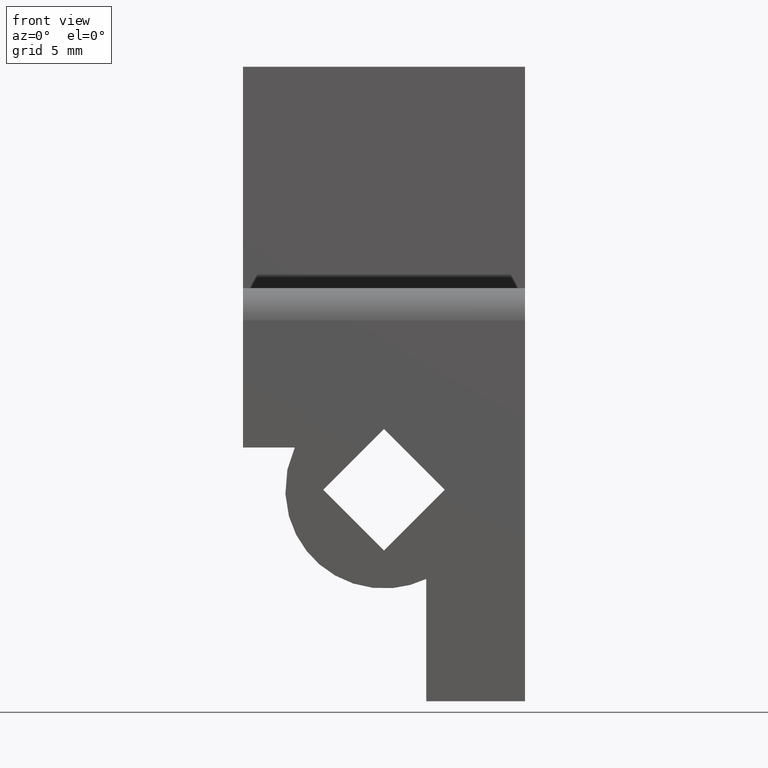
[diagram: clean part render]
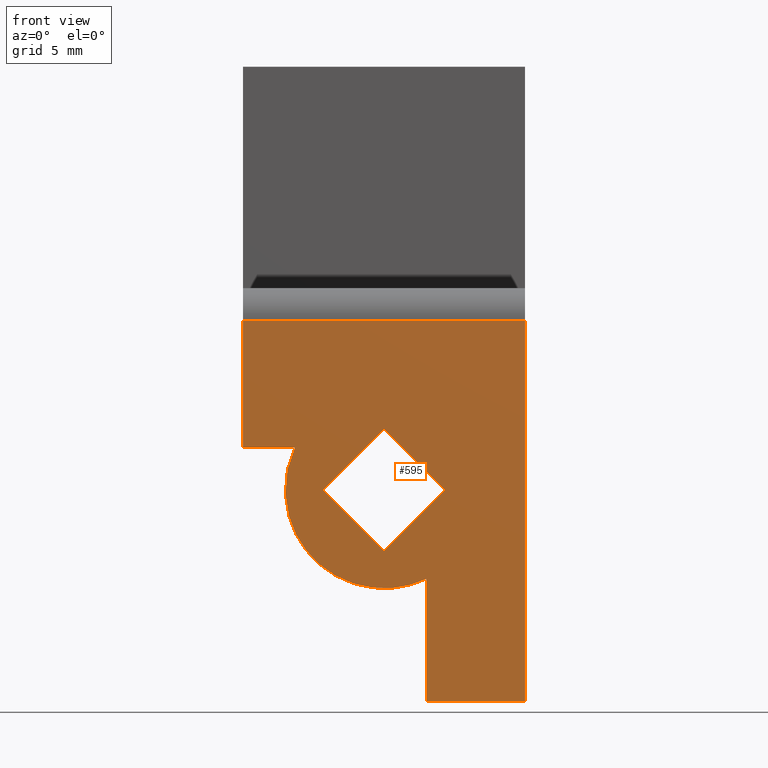
[diagram: same view with one face highlighted and labeled with its STEP entity id]
A machine part, front view. The second image highlights one B-rep face of the part: STEP entity #595.
In plain terms, the highlighted face is a freeform B-spline surface patch.
Its self-contained STEP definition (entity closure, byte-faithful):
#51=CARTESIAN_POINT('',(-4.313324000000286,0.0,0.000007999999885));
#52=VERTEX_POINT('',#51);
#58=CARTESIAN_POINT('',(0.0,0.0,-4.313347000000000));
#59=VERTEX_POINT('',#58);
#60=CARTESIAN_POINT('',(-4.313324000000286,0.0,0.000007999999885));
#61=CARTESIAN_POINT('',(0.0,0.0,-4.313347000000000));
#62=QUASI_UNIFORM_CURVE('',1,(#60,#61),.UNSPECIFIED.,.F.,.U.);
#63=EDGE_CURVE('',#52,#59,#62,.T.);
#87=CARTESIAN_POINT('',(0.0,0.0,4.313338999999901));
#88=VERTEX_POINT('',#87);
#94=CARTESIAN_POINT('',(0.0,0.0,4.313338999999901));
#95=CARTESIAN_POINT('',(-4.313324000000286,0.0,0.000007999999885));
#96=QUASI_UNIFORM_CURVE('',1,(#94,#95),.UNSPECIFIED.,.F.,.U.);
#97=EDGE_CURVE('',#88,#52,#96,.T.);
#115=CARTESIAN_POINT('',(4.313353999999890,0.0,-0.000007999999994));
#116=VERTEX_POINT('',#115);
#122=CARTESIAN_POINT('',(4.313353999999890,0.0,-0.000007999999994));
#123=CARTESIAN_POINT('',(0.0,0.0,4.313338999999901));
#124=QUASI_UNIFORM_CURVE('',1,(#122,#123),.UNSPECIFIED.,.F.,.U.);
#125=EDGE_CURVE('',#116,#88,#124,.T.);
#142=CARTESIAN_POINT('',(0.0,0.0,-4.313347000000000));
#143=CARTESIAN_POINT('',(4.313353999999890,0.0,-0.000007999999994));
#144=QUASI_UNIFORM_CURVE('',1,(#142,#143),.UNSPECIFIED.,.F.,.U.);
#145=EDGE_CURVE('',#59,#116,#144,.T.);
#163=CARTESIAN_POINT('',(-6.324555000000090,0.0,3.0));
#164=VERTEX_POINT('',#163);
#170=CARTESIAN_POINT('',(-10.000000000000121,0.0,3.0));
#171=VERTEX_POINT('',#170);
#172=CARTESIAN_POINT('',(-6.324555000000090,0.0,3.0));
#173=CARTESIAN_POINT('',(-10.000000000000121,0.0,3.0));
#174=QUASI_UNIFORM_CURVE('',1,(#172,#173),.UNSPECIFIED.,.F.,.U.);
#175=EDGE_CURVE('',#164,#171,#174,.T.);
#199=CARTESIAN_POINT('',(3.0,0.0,-15.0));
#200=VERTEX_POINT('',#199);
#206=CARTESIAN_POINT('',(3.0,0.0,-6.324562000000100));
#207=VERTEX_POINT('',#206);
#208=CARTESIAN_POINT('',(3.0,0.0,-15.0));
#209=CARTESIAN_POINT('',(3.0,0.0,-6.324562000000100));
#210=QUASI_UNIFORM_CURVE('',1,(#208,#209),.UNSPECIFIED.,.F.,.U.);
#211=EDGE_CURVE('',#200,#207,#210,.T.);
#262=CARTESIAN_POINT('',(-6.324555000000090,0.0,3.0));
#263=CARTESIAN_POINT('',(-8.439917307903180,0.0,-1.459576373039803));
#264=CARTESIAN_POINT('',(-4.949747104974504,0.0,-4.949749196060422));
#265=CARTESIAN_POINT('',(-1.459576902045831,0.0,-8.439922019081038));
#266=CARTESIAN_POINT('',(3.0,0.0,-6.324562000000100));
#274=(BOUNDED_CURVE()B_SPLINE_CURVE(2,(#262,#263,#264,#265,#266),.UNSPECIFIED.,.F.,.U.)B_SPLINE_CURVE_WITH_KNOTS((3,2,3),(0.0,0.500000000000000,1.0),.UNSPECIFIED.)CURVE()GEOMETRIC_REPRESENTATION_ITEM()RATIONAL_B_SPLINE_CURVE((1.0,0.817260969642256,1.0,0.817260969642256,1.0))REPRESENTATION_ITEM(''));
#275=EDGE_CURVE('',#164,#207,#274,.T.);
#294=CARTESIAN_POINT('',(-10.000000000000121,0.000003000000015,11.999999799287140));
#295=VERTEX_POINT('',#294);
#296=CARTESIAN_POINT('',(-10.000000000000121,0.000003000000015,11.999999799287140));
#297=CARTESIAN_POINT('',(-10.000000000000121,0.0,3.0));
#298=QUASI_UNIFORM_CURVE('',1,(#296,#297),.UNSPECIFIED.,.F.,.U.);
#299=EDGE_CURVE('',#295,#171,#298,.T.);
#399=CARTESIAN_POINT('',(10.0,0.000003000000015,11.999999799287140));
#400=VERTEX_POINT('',#399);
#416=CARTESIAN_POINT('',(10.0,0.0,-15.0));
#417=VERTEX_POINT('',#416);
#418=CARTESIAN_POINT('',(10.0,0.000003000000015,11.999999799287140));
#419=CARTESIAN_POINT('',(10.0,0.0,-15.0));
#420=QUASI_UNIFORM_CURVE('',1,(#418,#419),.UNSPECIFIED.,.F.,.U.);
#421=EDGE_CURVE('',#400,#417,#420,.T.);
#560=CARTESIAN_POINT('',(10.0,0.0,-15.0));
#561=CARTESIAN_POINT('',(3.0,0.0,-15.0));
#562=QUASI_UNIFORM_CURVE('',1,(#560,#561),.UNSPECIFIED.,.F.,.U.);
#563=EDGE_CURVE('',#417,#200,#562,.T.);
#571=CARTESIAN_POINT('',(-10.998999961236249,0.0,-16.348649937643160));
#572=CARTESIAN_POINT('',(-10.998999961236249,0.0,13.348650461126720));
#573=CARTESIAN_POINT('',(10.999000497677930,0.0,-16.348649937643160));
#574=CARTESIAN_POINT('',(10.999000497677930,0.0,13.348650461126720));
#575=B_SPLINE_SURFACE_WITH_KNOTS('',1,1,((#571,#573),(#572,#574)),.UNSPECIFIED.,.F.,.F.,.U.,(2,2),(2,2),(0.0,29.697300398769890),(0.0,21.998000458914181),.UNSPECIFIED.);
#576=ORIENTED_EDGE('',*,*,#275,.T.);
#577=ORIENTED_EDGE('',*,*,#211,.F.);
#578=ORIENTED_EDGE('',*,*,#563,.F.);
#579=ORIENTED_EDGE('',*,*,#421,.F.);
#580=CARTESIAN_POINT('',(10.0,0.000003000000015,11.999999799287140));
#581=CARTESIAN_POINT('',(-10.000000000000121,0.000003000000015,11.999999799287140));
#582=QUASI_UNIFORM_CURVE('',1,(#580,#581),.UNSPECIFIED.,.F.,.U.);
#583=EDGE_CURVE('',#400,#295,#582,.T.);
#584=ORIENTED_EDGE('',*,*,#583,.T.);
#585=ORIENTED_EDGE('',*,*,#299,.T.);
#586=ORIENTED_EDGE('',*,*,#175,.F.);
#587=EDGE_LOOP('',(#576,#577,#578,#579,#584,#585,#586));
#588=FACE_OUTER_BOUND('',#587,.T.);
#589=ORIENTED_EDGE('',*,*,#125,.F.);
#590=ORIENTED_EDGE('',*,*,#145,.F.);
#591=ORIENTED_EDGE('',*,*,#63,.F.);
#592=ORIENTED_EDGE('',*,*,#97,.F.);
#593=EDGE_LOOP('',(#589,#590,#591,#592));
#594=FACE_BOUND('',#593,.T.);
#595=ADVANCED_FACE('',(#588,#594),#575,.F.);